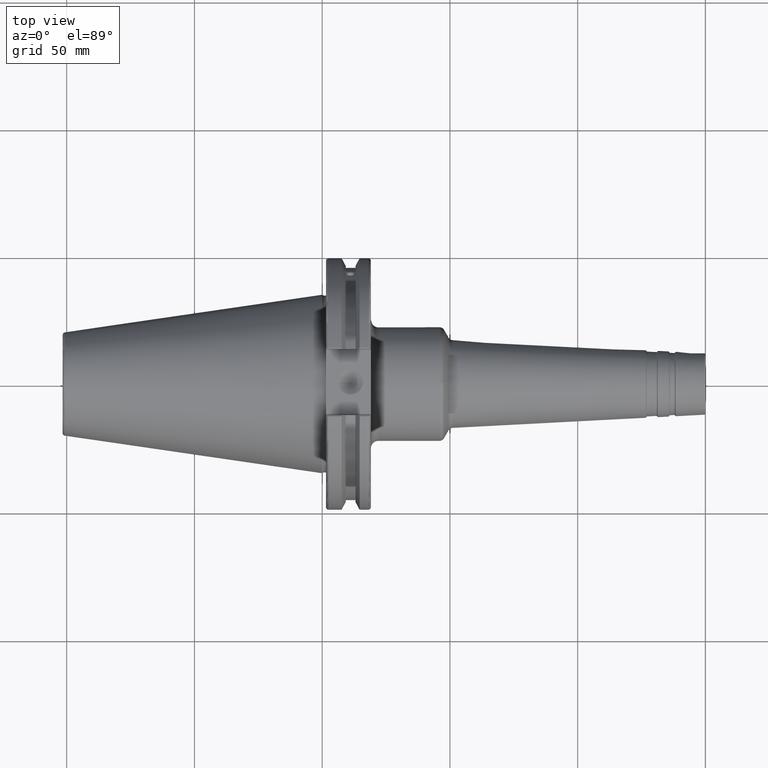
[diagram: clean part render]
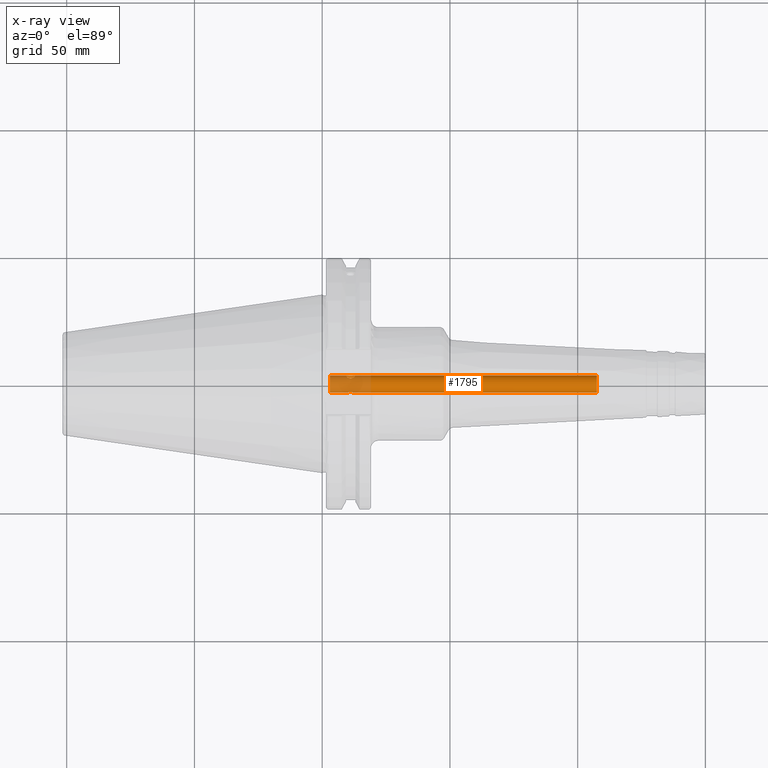
[diagram: x-ray — body ghosted, one internal face saturated and labeled with its STEP entity id]
A machine part, top view, then the same camera in x-ray: the body is ghosted and one INTERNAL B-rep face — a face not visible from any outside direction — is saturated and labeled: STEP entity #1795.
In plain terms, the highlighted cylindrical surface (bore or boss wall) has radius 3.3235 mm, axis along (1, 0, 0).
Its self-contained STEP definition (entity closure, byte-faithful):
#113=FACE_BOUND('',#276,.T.);
#114=FACE_BOUND('',#277,.T.);
#131=B_SPLINE_CURVE_WITH_KNOTS('',3,(#2726,#2727,#2728,#2729,#2730,#2731,
#2732,#2733,#2734,#2735),.UNSPECIFIED.,.F.,.F.,(4,2,2,2,4),(0.,0.0623163402888063,
0.124632680577613,0.186797302908102,0.248961925238592),.UNSPECIFIED.);
#132=B_SPLINE_CURVE_WITH_KNOTS('',3,(#2736,#2737,#2738,#2739,#2740,#2741,
#2742,#2743,#2744,#2745,#2746,#2747,#2748,#2749,#2750,#2751,#2752,#2753,
#2754,#2755,#2756,#2757,#2758,#2759,#2760,#2761),.UNSPECIFIED.,.F.,.F.,
(4,2,2,2,2,2,2,2,2,2,2,2,4),(0.248961925238592,0.311126547569082,0.373291169899571,
0.435607510188378,0.497923850477184,0.560240190765988,0.622556531054793,
0.684721153385282,0.746885775715772,0.809050398046262,0.871215020376752,
0.933531360665556,0.995847700954361),.UNSPECIFIED.);
#133=B_SPLINE_CURVE_WITH_KNOTS('',3,(#2764,#2765,#2766,#2767,#2768,#2769,
#2770,#2771,#2772,#2773),.UNSPECIFIED.,.F.,.F.,(4,2,2,2,4),(0.,0.0623163402888063,
0.124632680577613,0.186797302908102,0.248961925238592),.UNSPECIFIED.);
#134=B_SPLINE_CURVE_WITH_KNOTS('',3,(#2774,#2775,#2776,#2777,#2778,#2779,
#2780,#2781,#2782,#2783,#2784,#2785,#2786,#2787,#2788,#2789,#2790,#2791,
#2792,#2793,#2794,#2795,#2796,#2797,#2798,#2799),.UNSPECIFIED.,.F.,.F.,
(4,2,2,2,2,2,2,2,2,2,2,2,4),(0.248961925238592,0.311126547569081,0.373291169899571,
0.435607510188377,0.497923850477184,0.560240190765988,0.622556531054793,
0.684721153385282,0.746885775715772,0.809050398046262,0.871215020376752,
0.933531360665556,0.995847700954361),.UNSPECIFIED.);
#171=FACE_OUTER_BOUND('',#275,.T.);
#275=EDGE_LOOP('',(#1199,#1200,#1201,#1202,#1203));
#276=EDGE_LOOP('',(#1204,#1205));
#277=EDGE_LOOP('',(#1206,#1207));
#397=LINE('',#2720,#498);
#498=VECTOR('',#2158,3.3235);
#599=CIRCLE('',#1923,3.3235);
#600=CIRCLE('',#1924,3.3235);
#601=CIRCLE('',#1925,3.3235);
#723=VERTEX_POINT('',#2717);
#724=VERTEX_POINT('',#2719);
#725=VERTEX_POINT('',#2721);
#726=VERTEX_POINT('',#2724);
#727=VERTEX_POINT('',#2725);
#728=VERTEX_POINT('',#2762);
#729=VERTEX_POINT('',#2763);
#914=EDGE_CURVE('',#723,#723,#599,.T.);
#915=EDGE_CURVE('',#723,#724,#397,.T.);
#916=EDGE_CURVE('',#725,#724,#600,.T.);
#917=EDGE_CURVE('',#724,#725,#601,.T.);
#918=EDGE_CURVE('',#726,#727,#131,.T.);
#919=EDGE_CURVE('',#727,#726,#132,.T.);
#920=EDGE_CURVE('',#728,#729,#133,.T.);
#921=EDGE_CURVE('',#729,#728,#134,.T.);
#1199=ORIENTED_EDGE('',*,*,#914,.F.);
#1200=ORIENTED_EDGE('',*,*,#915,.T.);
#1201=ORIENTED_EDGE('',*,*,#916,.F.);
#1202=ORIENTED_EDGE('',*,*,#917,.F.);
#1203=ORIENTED_EDGE('',*,*,#915,.F.);
#1204=ORIENTED_EDGE('',*,*,#918,.F.);
#1205=ORIENTED_EDGE('',*,*,#919,.F.);
#1206=ORIENTED_EDGE('',*,*,#920,.F.);
#1207=ORIENTED_EDGE('',*,*,#921,.F.);
#1769=CYLINDRICAL_SURFACE('',#1922,3.3235);
#1795=ADVANCED_FACE('',(#171,#113,#114),#1769,.F.);
#1922=AXIS2_PLACEMENT_3D('',#2716,#2154,#2155);
#1923=AXIS2_PLACEMENT_3D('',#2718,#2156,#2157);
#1924=AXIS2_PLACEMENT_3D('',#2722,#2159,#2160);
#1925=AXIS2_PLACEMENT_3D('',#2723,#2161,#2162);
#2154=DIRECTION('center_axis',(1.,0.,0.));
#2155=DIRECTION('ref_axis',(0.,0.,-1.));
#2156=DIRECTION('center_axis',(-1.,0.,0.));
#2157=DIRECTION('ref_axis',(0.,0.,-1.));
#2158=DIRECTION('',(-1.,0.,0.));
#2159=DIRECTION('center_axis',(1.,0.,0.));
#2160=DIRECTION('ref_axis',(0.,0.,-1.));
#2161=DIRECTION('center_axis',(1.,0.,0.));
#2162=DIRECTION('ref_axis',(0.,0.,-1.));
#2716=CARTESIAN_POINT('Origin',(-178.780961616068,0.,0.));
#2717=CARTESIAN_POINT('',(107.5,-4.07011363696623E-16,3.3235));
#2718=CARTESIAN_POINT('Origin',(107.5,0.,0.));
#2719=CARTESIAN_POINT('',(3.00379406298916,-4.07011363696623E-16,3.3235));
#2720=CARTESIAN_POINT('',(-178.780961616068,-4.07011363696623E-16,3.3235));
#2721=CARTESIAN_POINT('',(3.00379406298917,-4.07011363696623E-16,-3.3235));
#2722=CARTESIAN_POINT('Origin',(3.00379406298916,0.,0.));
#2723=CARTESIAN_POINT('Origin',(3.00379406298916,0.,0.));
#2724=CARTESIAN_POINT('',(11.127,-2.1719915894254,-2.51557245681084));
#2725=CARTESIAN_POINT('',(9.506,-3.12306842518197,-1.13670394634286));
#2726=CARTESIAN_POINT('Ctrl Pts',(11.127,-2.1719915894254,-2.51557245681084));
#2727=CARTESIAN_POINT('Ctrl Pts',(10.919278865704,-2.1719915894254,-2.51557245681084));
#2728=CARTESIAN_POINT('Ctrl Pts',(10.700773919965,-2.20963156086642,-2.48432232428479));
#2729=CARTESIAN_POINT('Ctrl Pts',(10.3028059151705,-2.34530866961651,-2.35666192447594));
#2730=CARTESIAN_POINT('Ctrl Pts',(10.1229412459749,-2.44171800799412,-2.25977955627742));
#2731=CARTESIAN_POINT('Ctrl Pts',(9.83896468133521,-2.63689178089797,-2.02861545213019));
#2732=CARTESIAN_POINT('Ctrl Pts',(9.71469591080726,-2.74948807769595,-1.87806281080472));
#2733=CARTESIAN_POINT('Ctrl Pts',(9.54812511902457,-2.95749295705139,-1.52971894116154));
#2734=CARTESIAN_POINT('Ctrl Pts',(9.506,-3.05219658171777,-1.33142273593587));
#2735=CARTESIAN_POINT('Ctrl Pts',(9.506,-3.12306842518197,-1.13670394634286));
#2736=CARTESIAN_POINT('Ctrl Pts',(9.506,-3.12306842518197,-1.13670394634286));
#2737=CARTESIAN_POINT('Ctrl Pts',(9.506,-3.19394026864617,-0.941985156749846));
#2738=CARTESIAN_POINT('Ctrl Pts',(9.54812511902457,-3.24885542699418,-0.729207134117189));
#2739=CARTESIAN_POINT('Ctrl Pts',(9.71469591080726,-3.31342556833921,-0.328657289278457));
#2740=CARTESIAN_POINT('Ctrl Pts',(9.83896468133521,-3.32394517331094,-0.140951770515859));
#2741=CARTESIAN_POINT('Ctrl Pts',(10.1229412459749,-3.3230228110855,0.161585489873076));
#2742=CARTESIAN_POINT('Ctrl Pts',(10.3028059151705,-3.31144375903166,0.297772417834956));
#2743=CARTESIAN_POINT('Ctrl Pts',(10.700773919965,-3.28956758705997,0.482777522137525));
#2744=CARTESIAN_POINT('Ctrl Pts',(10.919278865704,-3.28082089408722,0.530911019777077));
#2745=CARTESIAN_POINT('Ctrl Pts',(11.334721134296,-3.28082089408722,0.530911019777076));
#2746=CARTESIAN_POINT('Ctrl Pts',(11.553226080035,-3.28956758705997,0.482777522137529));
#2747=CARTESIAN_POINT('Ctrl Pts',(11.9511940848295,-3.31144375903166,0.297772417834969));
#2748=CARTESIAN_POINT('Ctrl Pts',(12.131058754025,-3.3230228110855,0.161585489873069));
#2749=CARTESIAN_POINT('Ctrl Pts',(12.4150353186648,-3.32394517331094,-0.140951770515858));
#2750=CARTESIAN_POINT('Ctrl Pts',(12.5393040891927,-3.31342556833921,-0.328657289278444));
#2751=CARTESIAN_POINT('Ctrl Pts',(12.7058748809754,-3.24885542699418,-0.729207134117175));
#2752=CARTESIAN_POINT('Ctrl Pts',(12.748,-3.19394026864617,-0.941985156749846));
#2753=CARTESIAN_POINT('Ctrl Pts',(12.748,-3.05219658171777,-1.33142273593587));
#2754=CARTESIAN_POINT('Ctrl Pts',(12.7058748809754,-2.95749295705138,-1.52971894116155));
#2755=CARTESIAN_POINT('Ctrl Pts',(12.5393040891927,-2.74948807769594,-1.87806281080473));
#2756=CARTESIAN_POINT('Ctrl Pts',(12.4150353186648,-2.63689178089797,-2.02861545213019));
#2757=CARTESIAN_POINT('Ctrl Pts',(12.131058754025,-2.44171800799412,-2.25977955627742));
#2758=CARTESIAN_POINT('Ctrl Pts',(11.9511940848295,-2.3453086696165,-2.35666192447595));
#2759=CARTESIAN_POINT('Ctrl Pts',(11.553226080035,-2.20963156086642,-2.4843223242848));
#2760=CARTESIAN_POINT('Ctrl Pts',(11.334721134296,-2.1719915894254,-2.51557245681084));
#2761=CARTESIAN_POINT('Ctrl Pts',(11.127,-2.1719915894254,-2.51557245681084));
#2762=CARTESIAN_POINT('',(11.127,2.1719915894254,2.51557245681084));
#2763=CARTESIAN_POINT('',(9.506,3.12306842518197,1.13670394634286));
#2764=CARTESIAN_POINT('Ctrl Pts',(11.127,2.1719915894254,2.51557245681084));
#2765=CARTESIAN_POINT('Ctrl Pts',(10.919278865704,2.1719915894254,2.51557245681084));
#2766=CARTESIAN_POINT('Ctrl Pts',(10.700773919965,2.20963156086642,2.48432232428479));
#2767=CARTESIAN_POINT('Ctrl Pts',(10.3028059151705,2.34530866961651,2.35666192447594));
#2768=CARTESIAN_POINT('Ctrl Pts',(10.1229412459749,2.44171800799412,2.25977955627742));
#2769=CARTESIAN_POINT('Ctrl Pts',(9.83896468133521,2.63689178089797,2.02861545213019));
#2770=CARTESIAN_POINT('Ctrl Pts',(9.71469591080726,2.74948807769595,1.87806281080472));
#2771=CARTESIAN_POINT('Ctrl Pts',(9.54812511902457,2.95749295705139,1.52971894116154));
#2772=CARTESIAN_POINT('Ctrl Pts',(9.506,3.05219658171777,1.33142273593587));
#2773=CARTESIAN_POINT('Ctrl Pts',(9.506,3.12306842518197,1.13670394634286));
#2774=CARTESIAN_POINT('Ctrl Pts',(9.506,3.12306842518197,1.13670394634286));
#2775=CARTESIAN_POINT('Ctrl Pts',(9.506,3.19394026864617,0.941985156749847));
#2776=CARTESIAN_POINT('Ctrl Pts',(9.54812511902457,3.24885542699418,0.729207134117191));
#2777=CARTESIAN_POINT('Ctrl Pts',(9.71469591080726,3.31342556833921,0.328657289278458));
#2778=CARTESIAN_POINT('Ctrl Pts',(9.83896468133521,3.32394517331094,0.14095177051586));
#2779=CARTESIAN_POINT('Ctrl Pts',(10.1229412459749,3.3230228110855,-0.161585489873075));
#2780=CARTESIAN_POINT('Ctrl Pts',(10.3028059151705,3.31144375903166,-0.297772417834956));
#2781=CARTESIAN_POINT('Ctrl Pts',(10.700773919965,3.28956758705997,-0.482777522137525));
#2782=CARTESIAN_POINT('Ctrl Pts',(10.919278865704,3.28082089408722,-0.530911019777077));
#2783=CARTESIAN_POINT('Ctrl Pts',(11.334721134296,3.28082089408722,-0.530911019777076));
#2784=CARTESIAN_POINT('Ctrl Pts',(11.553226080035,3.28956758705997,-0.482777522137529));
#2785=CARTESIAN_POINT('Ctrl Pts',(11.9511940848295,3.31144375903166,-0.297772417834968));
#2786=CARTESIAN_POINT('Ctrl Pts',(12.131058754025,3.32302281108551,-0.161585489873068));
#2787=CARTESIAN_POINT('Ctrl Pts',(12.4150353186648,3.32394517331094,0.140951770515859));
#2788=CARTESIAN_POINT('Ctrl Pts',(12.5393040891927,3.31342556833921,0.328657289278445));
#2789=CARTESIAN_POINT('Ctrl Pts',(12.7058748809754,3.24885542699418,0.729207134117176));
#2790=CARTESIAN_POINT('Ctrl Pts',(12.748,3.19394026864617,0.941985156749847));
#2791=CARTESIAN_POINT('Ctrl Pts',(12.748,3.05219658171777,1.33142273593587));
#2792=CARTESIAN_POINT('Ctrl Pts',(12.7058748809754,2.95749295705138,1.52971894116155));
#2793=CARTESIAN_POINT('Ctrl Pts',(12.5393040891927,2.74948807769594,1.87806281080473));
#2794=CARTESIAN_POINT('Ctrl Pts',(12.4150353186648,2.63689178089797,2.02861545213019));
#2795=CARTESIAN_POINT('Ctrl Pts',(12.131058754025,2.44171800799412,2.25977955627742));
#2796=CARTESIAN_POINT('Ctrl Pts',(11.9511940848295,2.3453086696165,2.35666192447595));
#2797=CARTESIAN_POINT('Ctrl Pts',(11.553226080035,2.20963156086642,2.4843223242848));
#2798=CARTESIAN_POINT('Ctrl Pts',(11.334721134296,2.1719915894254,2.51557245681084));
#2799=CARTESIAN_POINT('Ctrl Pts',(11.127,2.1719915894254,2.51557245681084));